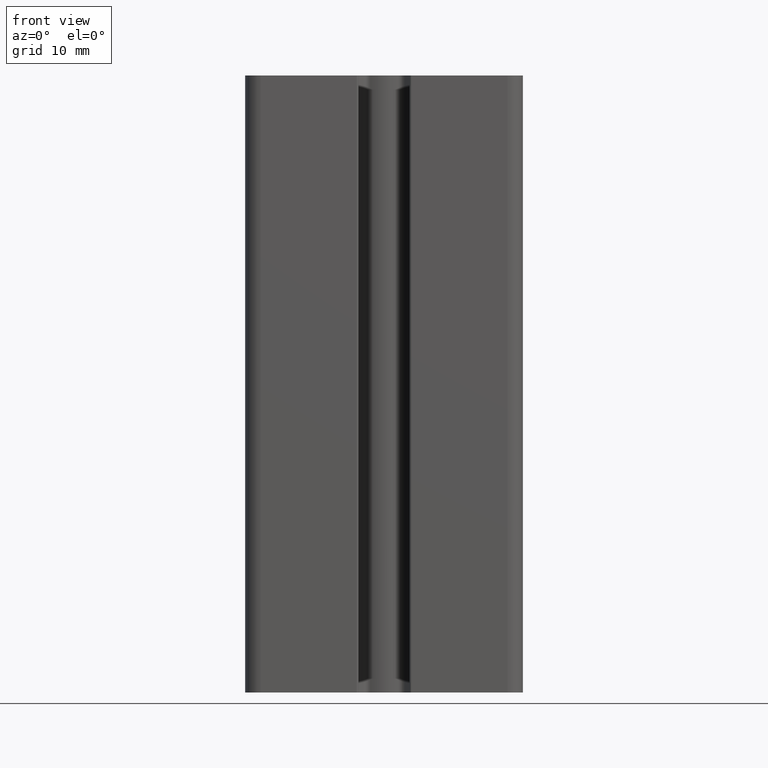
[diagram: clean part render]
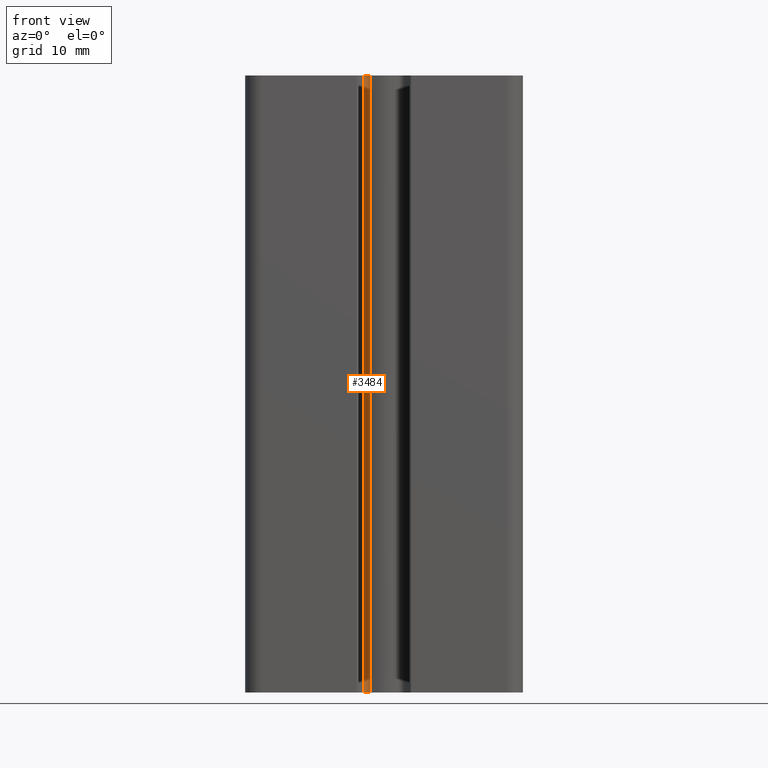
[diagram: same view with one face highlighted and labeled with its STEP entity id]
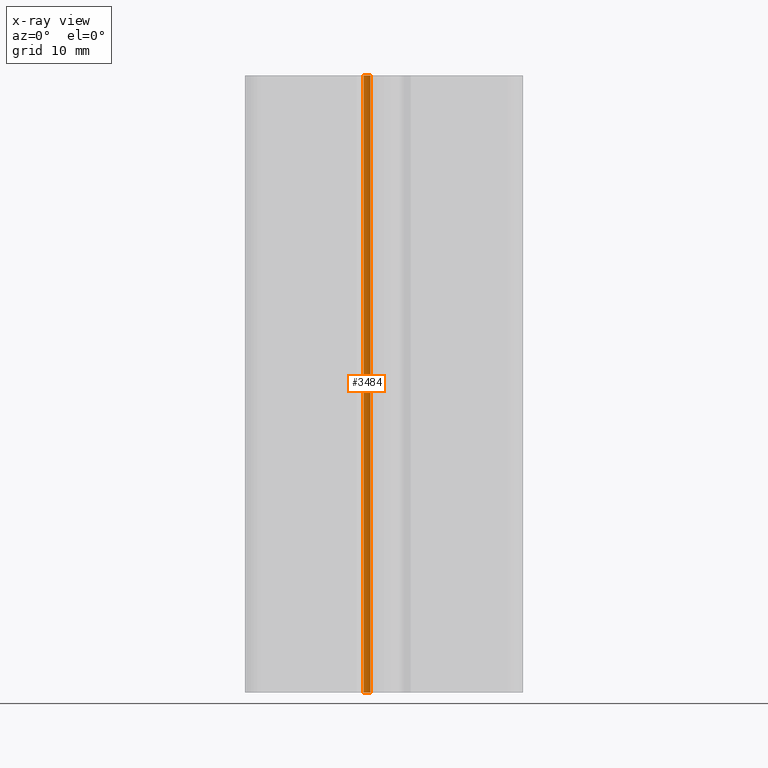
[diagram: x-ray of the same camera — body ghosted, the highlighted face saturated]
A machine part, front view. The second image highlights one B-rep face of the part: STEP entity #3484.
The next image is the same camera in x-ray: the body ghosted, the highlighted face saturated — about 0% of this face is hidden behind the body in this view.
In plain terms, the highlighted cylindrical surface (edge-blend (fillet) strip) has radius 1 mm, axis along (0, 0, 1).
Its self-contained STEP definition (entity closure, byte-faithful):
#170=CIRCLE('',#3810,1.);
#171=CIRCLE('',#3811,1.);
#308=CYLINDRICAL_SURFACE('',#3809,1.);
#457=FACE_OUTER_BOUND('',#637,.T.);
#637=EDGE_LOOP('',(#2696,#2697,#2698,#2699));
#915=LINE('',#5741,#1235);
#916=LINE('',#5747,#1236);
#1235=VECTOR('',#4663,100.);
#1236=VECTOR('',#4670,100.);
#1586=VERTEX_POINT('',#5738);
#1587=VERTEX_POINT('',#5740);
#1588=VERTEX_POINT('',#5744);
#1589=VERTEX_POINT('',#5746);
#2052=EDGE_CURVE('',#1587,#1586,#915,.T.);
#2054=EDGE_CURVE('',#1588,#1586,#170,.T.);
#2055=EDGE_CURVE('',#1589,#1588,#916,.T.);
#2056=EDGE_CURVE('',#1587,#1589,#171,.T.);
#2696=ORIENTED_EDGE('',*,*,#2054,.F.);
#2697=ORIENTED_EDGE('',*,*,#2055,.F.);
#2698=ORIENTED_EDGE('',*,*,#2056,.F.);
#2699=ORIENTED_EDGE('',*,*,#2052,.T.);
#3484=ADVANCED_FACE('',(#457),#308,.F.);
#3809=AXIS2_PLACEMENT_3D('',#5743,#4666,#4667);
#3810=AXIS2_PLACEMENT_3D('',#5745,#4668,#4669);
#3811=AXIS2_PLACEMENT_3D('',#5748,#4671,#4672);
#4663=DIRECTION('',(0.,0.,1.));
#4666=DIRECTION('center_axis',(0.,0.,1.));
#4667=DIRECTION('ref_axis',(0.389406687510671,0.921065921485518,0.));
#4668=DIRECTION('center_axis',(0.,0.,-1.));
#4669=DIRECTION('ref_axis',(0.389406687510671,0.921065921485518,0.));
#4670=DIRECTION('',(0.,0.,1.));
#4671=DIRECTION('center_axis',(0.,0.,1.));
#4672=DIRECTION('ref_axis',(0.389406687510671,0.921065921485518,0.));
#5738=CARTESIAN_POINT('',(-2.2001477844353,-5.20402245639318,100.));
#5740=CARTESIAN_POINT('',(-2.2001477844353,-5.20402245639318,0.));
#5741=CARTESIAN_POINT('',(-2.2001477844353,-5.20402245639318,0.));
#5743=CARTESIAN_POINT('Origin',(-2.58955447194597,-6.12508837787869,0.));
#5744=CARTESIAN_POINT('',(-3.29666125313251,-5.41798159669215,100.));
#5745=CARTESIAN_POINT('Origin',(-2.58955447194597,-6.12508837787869,100.));
#5746=CARTESIAN_POINT('',(-3.29666125313251,-5.41798159669215,0.));
#5747=CARTESIAN_POINT('',(-3.29666125313251,-5.41798159669215,0.));
#5748=CARTESIAN_POINT('Origin',(-2.58955447194597,-6.12508837787869,0.));